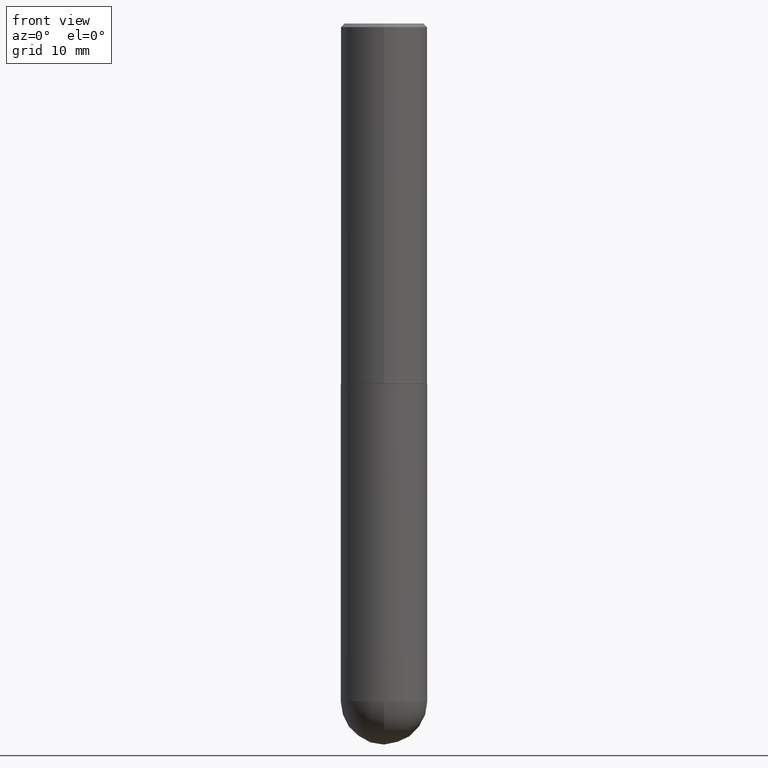
[diagram: clean part render]
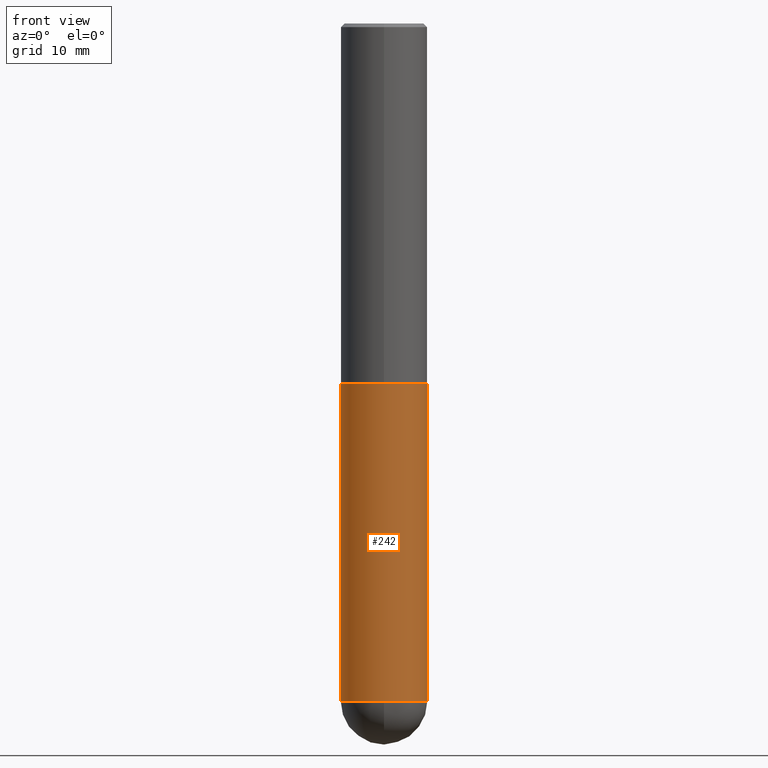
[diagram: same view with one face highlighted and labeled with its STEP entity id]
A machine part, front view. The second image highlights one B-rep face of the part: STEP entity #242.
In plain terms, the highlighted cylindrical surface (partial cylindrical patch) has radius 5.9995 mm, axis along (-0, 0, 1).
Its self-contained STEP definition (entity closure, byte-faithful):
#6 = CYLINDRICAL_SURFACE ( 'NONE', #339, 0.2361999999999999933 ) ;
#7 = DIRECTION ( 'NONE',  ( 1.000000000000000000, -6.982962677686266711E-15, 4.876176775795936353E-29 ) ) ;
#20 = EDGE_CURVE ( 'NONE', #348, #406, #328, .T. ) ;
#27 = ORIENTED_EDGE ( 'NONE', *, *, #157, .F. ) ;
#35 = CARTESIAN_POINT ( 'NONE',  ( -0.2361999999999999933, 1.678301941865356591E-15, -1.161852468318208757E-29 ) ) ;
#48 = CIRCLE ( 'NONE', #254, 0.2361999999999999933 ) ;
#56 = CARTESIAN_POINT ( 'NONE',  ( -0.2361999999999999933, -8.218825635286368613E-15, -3.700800000000000090 ) ) ;
#61 = VERTEX_POINT ( 'NONE', #202 ) ;
#67 = EDGE_CURVE ( 'NONE', #348, #61, #48, .T. ) ;
#70 = CARTESIAN_POINT ( 'NONE',  ( 0.000000000000000000, 0.000000000000000000, 0.000000000000000000 ) ) ;
#89 = DIRECTION ( 'NONE',  ( -2.445468806185136597E-29, 3.491481338843145583E-15, 1.000000000000000000 ) ) ;
#106 = LINE ( 'NONE', #246, #264 ) ;
#114 = DIRECTION ( 'NONE',  ( 1.000000000000000000, -6.982962677686269077E-15, 0.000000000000000000 ) ) ;
#122 = ORIENTED_EDGE ( 'NONE', *, *, #300, .T. ) ;
#127 = AXIS2_PLACEMENT_3D ( 'NONE', #283, #89, #114 ) ;
#134 = ORIENTED_EDGE ( 'NONE', *, *, #67, .T. ) ;
#157 = EDGE_CURVE ( 'NONE', #406, #230, #315, .T. ) ;
#160 = DIRECTION ( 'NONE',  ( 1.000000000000000000, -6.982962677686265133E-15, 0.000000000000000000 ) ) ;
#163 = EDGE_LOOP ( 'NONE', ( #182, #134, #233, #122, #27 ) ) ;
#182 = ORIENTED_EDGE ( 'NONE', *, *, #20, .F. ) ;
#202 = CARTESIAN_POINT ( 'NONE',  ( -1.678301941865268633E-15, -0.2362000000000132882, -3.700799999999998757 ) ) ;
#230 = VERTEX_POINT ( 'NONE', #234 ) ;
#233 = ORIENTED_EDGE ( 'NONE', *, *, #313, .T. ) ;
#234 = CARTESIAN_POINT ( 'NONE',  ( 0.2361999999999999933, -8.522356799982228232E-15, -1.968500000000000139 ) ) ;
#242 = ADVANCED_FACE ( 'NONE', ( #297 ), #6, .T. ) ;
#245 = CARTESIAN_POINT ( 'NONE',  ( 9.050190957929953666E-29, -1.292127413879071357E-14, -3.700800000000000090 ) ) ;
#246 = CARTESIAN_POINT ( 'NONE',  ( 0.2361999999999999933, -1.649375784469496131E-15, 1.151752954443000088E-29 ) ) ;
#248 = CARTESIAN_POINT ( 'NONE',  ( 9.050190957929953666E-29, -1.292127413879071357E-14, -3.700800000000000090 ) ) ;
#249 = VECTOR ( 'NONE', #318, 39.37007874015748143 ) ;
#253 = CARTESIAN_POINT ( 'NONE',  ( -0.2361999999999999933, -8.218825635286365458E-15, -1.968500000000000139 ) ) ;
#254 = AXIS2_PLACEMENT_3D ( 'NONE', #245, #393, #272 ) ;
#264 = VECTOR ( 'NONE', #361, 39.37007874015748143 ) ;
#272 = DIRECTION ( 'NONE',  ( 1.000000000000000000, -6.982962677686265133E-15, 0.000000000000000000 ) ) ;
#283 = CARTESIAN_POINT ( 'NONE',  ( 4.813905344975441835E-29, -6.872981015512731707E-15, -1.968500000000000139 ) ) ;
#296 = CIRCLE ( 'NONE', #358, 0.2361999999999999933 ) ;
#297 = FACE_OUTER_BOUND ( 'NONE', #163, .T. ) ;
#300 = EDGE_CURVE ( 'NONE', #375, #230, #106, .T. ) ;
#307 = DIRECTION ( 'NONE',  ( -2.445468806185136597E-29, 3.491481338843145583E-15, 1.000000000000000000 ) ) ;
#313 = EDGE_CURVE ( 'NONE', #61, #375, #296, .T. ) ;
#315 = CIRCLE ( 'NONE', #127, 0.2361999999999999933 ) ;
#318 = DIRECTION ( 'NONE',  ( -2.445468806185136877E-29, 3.491481338843145188E-15, 1.000000000000000000 ) ) ;
#328 = LINE ( 'NONE', #35, #249 ) ;
#339 = AXIS2_PLACEMENT_3D ( 'NONE', #70, #307, #7 ) ;
#348 = VERTEX_POINT ( 'NONE', #56 ) ;
#358 = AXIS2_PLACEMENT_3D ( 'NONE', #248, #363, #160 ) ;
#361 = DIRECTION ( 'NONE',  ( -2.445468806185136877E-29, 3.491481338843145188E-15, 1.000000000000000000 ) ) ;
#363 = DIRECTION ( 'NONE',  ( -2.445468806185136597E-29, 3.491481338843145583E-15, 1.000000000000000000 ) ) ;
#375 = VERTEX_POINT ( 'NONE', #399 ) ;
#393 = DIRECTION ( 'NONE',  ( -2.445468806185136597E-29, 3.491481338843145583E-15, 1.000000000000000000 ) ) ;
#399 = CARTESIAN_POINT ( 'NONE',  ( 0.2361999999999999933, -1.154650336162122153E-14, -3.700800000000000090 ) ) ;
#406 = VERTEX_POINT ( 'NONE', #253 ) ;